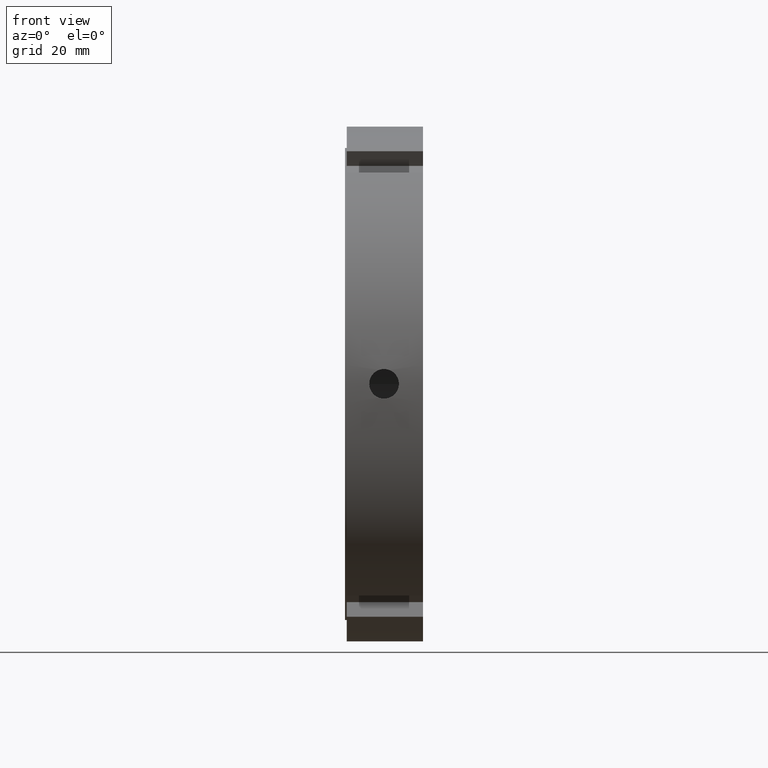
[diagram: clean part render]
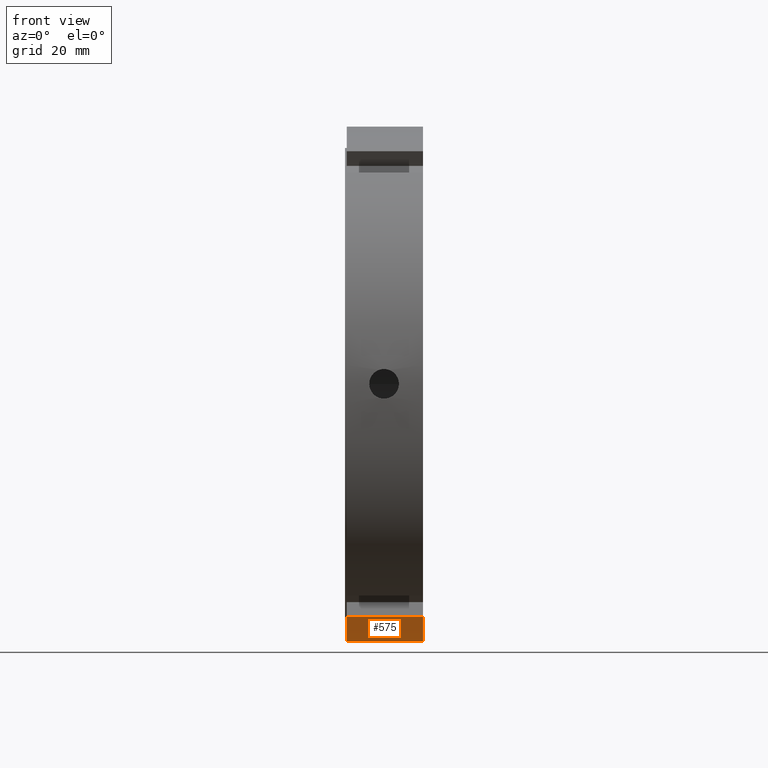
[diagram: same view with one face highlighted and labeled with its STEP entity id]
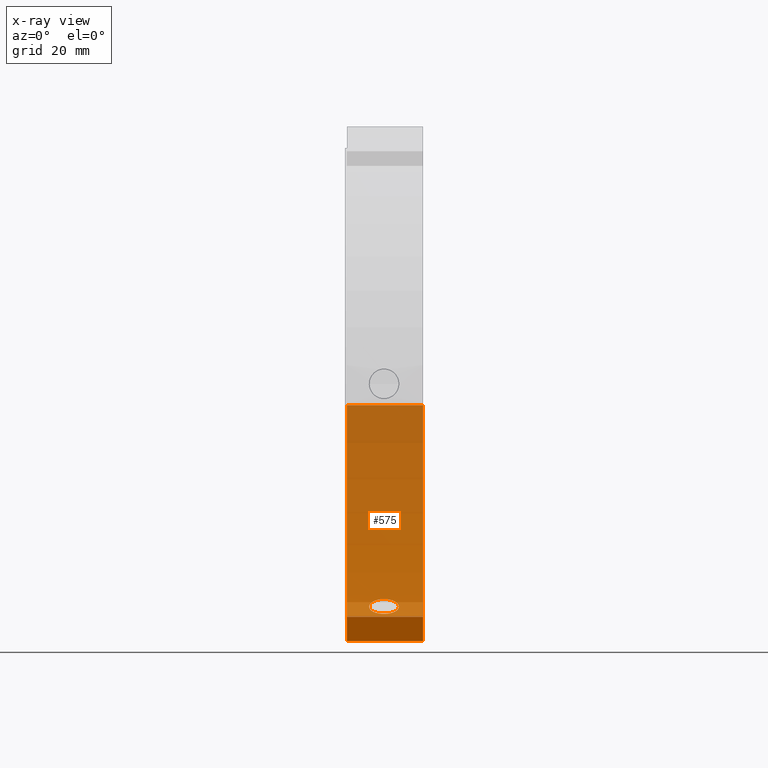
[diagram: x-ray of the same camera — body ghosted, the highlighted face saturated]
A machine part, front view. The second image highlights one B-rep face of the part: STEP entity #575.
The next image is the same camera in x-ray: the body ghosted, the highlighted face saturated — about 89% of this face is hidden behind the body in this view.
In plain terms, the highlighted cylindrical surface (partial cylindrical patch) has radius 72.5 mm, axis along (1, 0, 0).
Its self-contained STEP definition (entity closure, byte-faithful):
#113=CARTESIAN_POINT('',(0.499999999999980,-30.929496360394868,-65.571459148720507));
#114=VERTEX_POINT('',#113);
#123=CARTESIAN_POINT('',(21.999999999999986,-30.929496360394868,-65.571459148720507));
#124=VERTEX_POINT('',#123);
#125=CARTESIAN_POINT('',(21.999999999999986,-30.929496360394868,-65.571459148720493));
#126=DIRECTION('',(-1.0,0.0,0.0));
#127=VECTOR('',#126,21.500000000000007);
#128=LINE('',#125,#127);
#129=EDGE_CURVE('',#124,#114,#128,.T.);
#365=CARTESIAN_POINT('',(10.999999999999982,32.562554574383228,-64.775998947066142));
#366=VERTEX_POINT('',#365);
#367=CARTESIAN_POINT('',(10.999999999999982,32.562554574383235,-64.775998947066142));
#368=CARTESIAN_POINT('',(11.525980321830991,32.562554574383235,-64.775998947066142));
#369=CARTESIAN_POINT('',(12.086939726019141,32.656771323849348,-64.728904616268451));
#370=CARTESIAN_POINT('',(13.118741718952098,33.038364638978102,-64.534969342489333));
#371=CARTESIAN_POINT('',(13.589594241376016,33.325570953297721,-64.387846398038249));
#372=CARTESIAN_POINT('',(14.333132017821303,33.984691656741276,-64.042401391832442));
#373=CARTESIAN_POINT('',(14.655421560537070,34.400551535347994,-63.820986659243601));
#374=CARTESIAN_POINT('',(15.082858790318499,35.305526854567972,-63.324845500127211));
#375=CARTESIAN_POINT('',(15.187999999999985,35.794487850965481,-63.049831836236045));
#376=CARTESIAN_POINT('',(15.187999999999985,36.705512149034519,-62.523851712507593));
#377=CARTESIAN_POINT('',(15.082858790318497,37.188161466550852,-62.237905900113176));
#378=CARTESIAN_POINT('',(14.655421560537077,38.070319973818684,-61.702244863428945));
#379=CARTESIAN_POINT('',(14.333132017821303,38.470000696316120,-61.452807010435251));
#380=CARTESIAN_POINT('',(13.589594241376018,39.098725199022596,-61.054714240195764));
#381=CARTESIAN_POINT('',(13.118741718952112,39.369740563556633,-60.879547748093195));
#382=CARTESIAN_POINT('',(12.086939726019159,39.728490094903620,-60.646045880166930));
#383=CARTESIAN_POINT('',(11.525980321830991,39.816383356481680,-60.587998947066140));
#384=CARTESIAN_POINT('',(10.474019678168975,39.816383356481680,-60.587998947066140));
#385=CARTESIAN_POINT('',(9.913060273980811,39.728490094903613,-60.646045880166938));
#386=CARTESIAN_POINT('',(8.881258281047858,39.369740563556618,-60.879547748093202));
#387=CARTESIAN_POINT('',(8.410405758623949,39.098725199022596,-61.054714240195764));
#388=CARTESIAN_POINT('',(7.666867982178665,38.470000696316120,-61.452807010435251));
#389=CARTESIAN_POINT('',(7.344578439462893,38.070319973818684,-61.702244863428930));
#390=CARTESIAN_POINT('',(6.917141209681471,37.188161466550852,-62.237905900113162));
#391=CARTESIAN_POINT('',(6.811999999999983,36.705512149034519,-62.523851712507593));
#392=CARTESIAN_POINT('',(6.811999999999983,35.794487850965481,-63.049831836236045));
#393=CARTESIAN_POINT('',(6.917141209681471,35.305526854567965,-63.324845500127211));
#394=CARTESIAN_POINT('',(7.344578439462896,34.400551535347994,-63.820986659243601));
#395=CARTESIAN_POINT('',(7.666867982178665,33.984691656741276,-64.042401391832442));
#396=CARTESIAN_POINT('',(8.410405758623952,33.325570953297721,-64.387846398038249));
#397=CARTESIAN_POINT('',(8.881258281047868,33.038364638978102,-64.534969342489333));
#398=CARTESIAN_POINT('',(9.913060273980818,32.656771323849348,-64.728904616268451));
#399=CARTESIAN_POINT('',(10.474019678168974,32.562554574383235,-64.775998947066142));
#400=CARTESIAN_POINT('',(10.999999999999982,32.562554574383235,-64.775998947066142));
#401=B_SPLINE_CURVE_WITH_KNOTS('',3,(#367,#368,#369,#370,#371,#372,#373,#374,#375,#376,#377,#378,#379,#380,#381,#382,#383,#384,#385,#386,#387,#388,#389,#390,#391,#392,#393,#394,#395,#396,#397,#398,#399,#400),.UNSPECIFIED.,.T.,.U.,(4,2,2,2,2,2,2,2,2,2,2,2,2,2,2,2,4),(0.0,0.157794096549303,0.315588193098605,0.473382230217141,0.631176267335676,0.788970304454211,0.946764341572745,1.104558438122048,1.262352534671350,1.420146631220653,1.577940727769955,1.735734764888490,1.893528802007024,2.051322839125560,2.209116876244095,2.366910972793398,2.524705069342700),.UNSPECIFIED.);
#402=EDGE_CURVE('',#366,#366,#401,.T.);
#456=CARTESIAN_POINT('',(21.999999999999986,72.251297566202922,-5.999999999999996));
#457=VERTEX_POINT('',#456);
#458=CARTESIAN_POINT('',(21.999999999999986,0.0,0.0));
#459=DIRECTION('',(1.0,0.0,0.0));
#460=DIRECTION('',(0.0,1.0,0.0));
#461=AXIS2_PLACEMENT_3D('',#458,#459,#460);
#462=CIRCLE('',#461,72.500000000000000);
#463=EDGE_CURVE('',#124,#457,#462,.T.);
#548=CARTESIAN_POINT('',(11.249999999999982,0.0,0.0));
#549=DIRECTION('',(1.0,0.0,0.0));
#550=DIRECTION('',(0.0,1.0,0.0));
#551=AXIS2_PLACEMENT_3D('',#548,#549,#550);
#552=CYLINDRICAL_SURFACE('',#551,72.500000000000000);
#553=ORIENTED_EDGE('',*,*,#129,.T.);
#554=CARTESIAN_POINT('',(0.499999999999980,72.251297566202922,-5.999999999999997));
#555=VERTEX_POINT('',#554);
#556=CARTESIAN_POINT('',(0.499999999999980,0.0,0.0));
#557=DIRECTION('',(1.0,0.0,0.0));
#558=DIRECTION('',(0.0,1.0,0.0));
#559=AXIS2_PLACEMENT_3D('',#556,#557,#558);
#560=CIRCLE('',#559,72.500000000000000);
#561=EDGE_CURVE('',#114,#555,#560,.T.);
#562=ORIENTED_EDGE('',*,*,#561,.T.);
#563=CARTESIAN_POINT('',(0.499999999999980,72.251297566202922,-5.999999999999997));
#564=DIRECTION('',(1.0,0.0,0.0));
#565=VECTOR('',#564,21.500000000000007);
#566=LINE('',#563,#565);
#567=EDGE_CURVE('',#555,#457,#566,.T.);
#568=ORIENTED_EDGE('',*,*,#567,.T.);
#569=ORIENTED_EDGE('',*,*,#463,.F.);
#570=EDGE_LOOP('',(#553,#562,#568,#569));
#571=FACE_OUTER_BOUND('',#570,.T.);
#572=ORIENTED_EDGE('',*,*,#402,.T.);
#573=EDGE_LOOP('',(#572));
#574=FACE_BOUND('',#573,.T.);
#575=ADVANCED_FACE('',(#571,#574),#552,.T.);